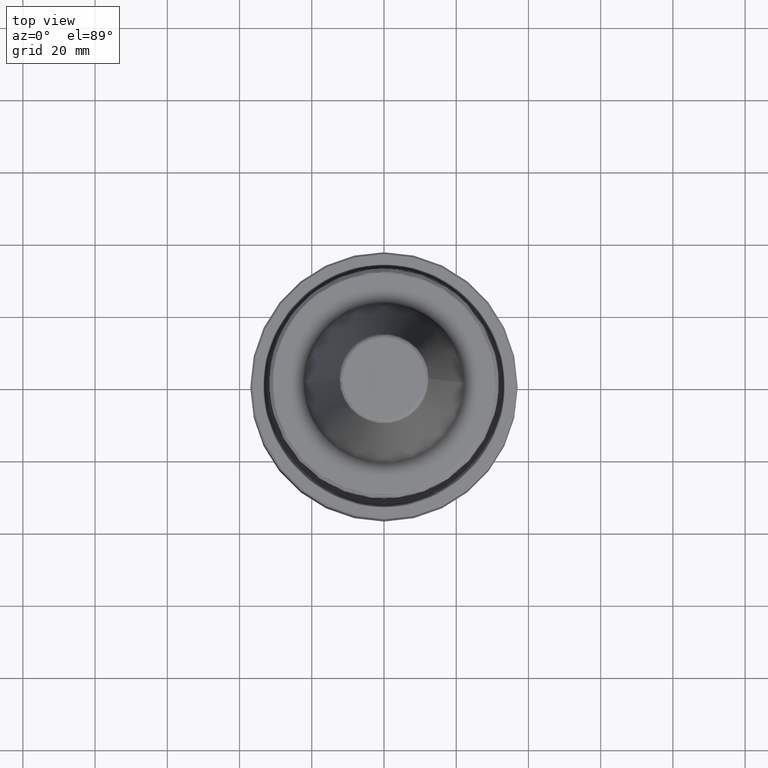
[diagram: clean part render]
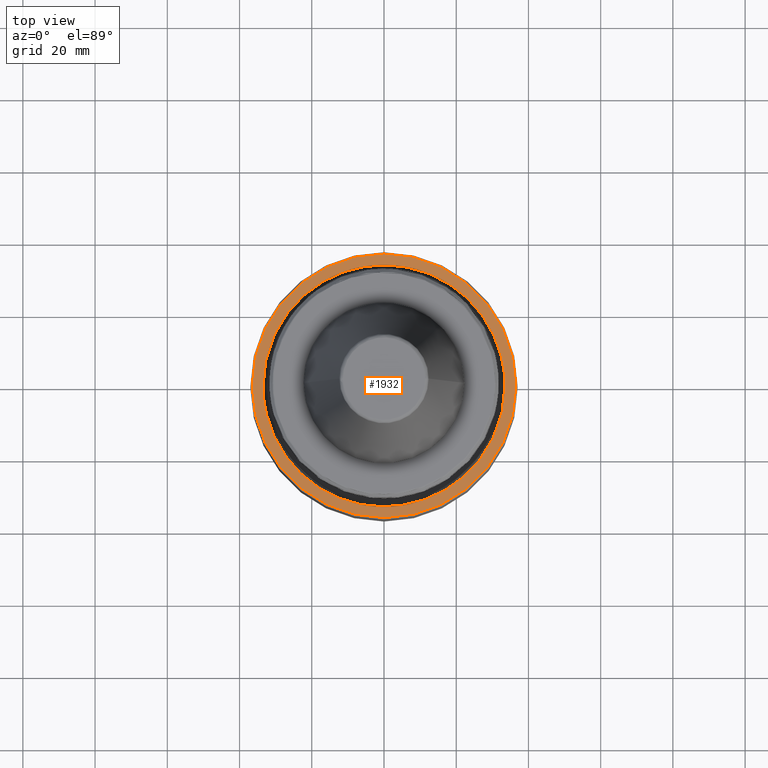
[diagram: same view with one face highlighted and labeled with its STEP entity id]
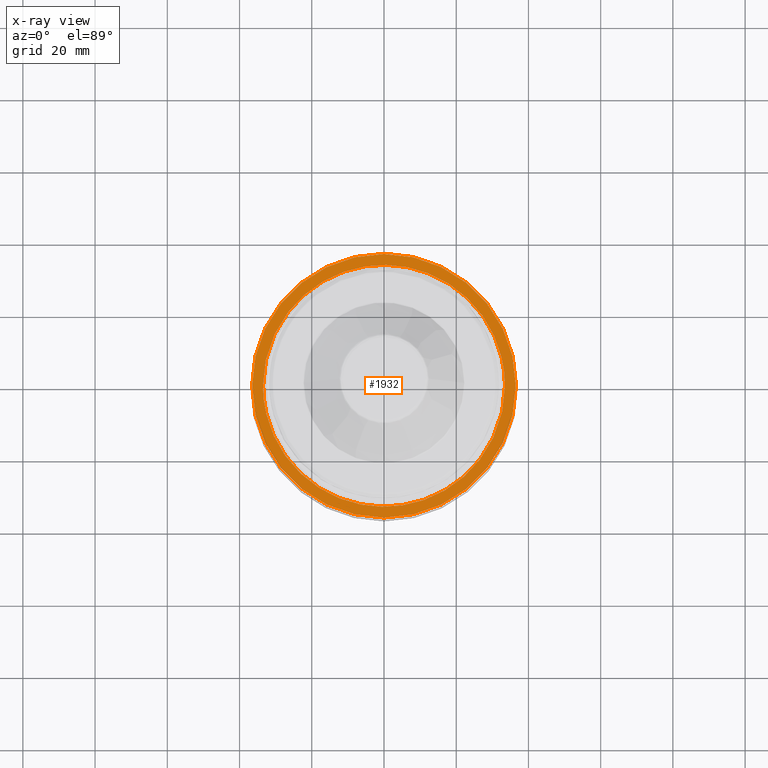
[diagram: x-ray of the same camera — body ghosted, the highlighted face saturated]
A machine part, top view. The second image highlights one B-rep face of the part: STEP entity #1932.
The next image is the same camera in x-ray: the body ghosted, the highlighted face saturated — about 0% of this face is hidden behind the body in this view.
In plain terms, the highlighted planar face has unit normal (0, 0, -1).
Its self-contained STEP definition (entity closure, byte-faithful):
#2 = CARTESIAN_POINT ( 'NONE',  ( 7.952359517104696400, -32.55059523198352900, -47.00000000000000000 ) ) ;
#7 = CARTESIAN_POINT ( 'NONE',  ( 33.50000000000000000, 2.048846822882249600, -46.99999999999999300 ) ) ;
#26 = CARTESIAN_POINT ( 'NONE',  ( -5.654859622911932800, -33.01973466267616400, -46.99999999999999300 ) ) ;
#38 = VERTEX_POINT ( 'NONE', #2089 ) ;
#41 = CARTESIAN_POINT ( 'NONE',  ( -12.29827467637837700, -31.16093272751250600, -47.00000000000000700 ) ) ;
#57 = CARTESIAN_POINT ( 'NONE',  ( -26.89171513926280700, -19.99223735235835200, -46.99999999999998600 ) ) ;
#72 = CARTESIAN_POINT ( 'NONE',  ( -31.12181933227925200, -12.39692386603525500, -46.99999999999996400 ) ) ;
#91 = CARTESIAN_POINT ( 'NONE',  ( -33.50000000000000000, 5.237097627849071600E-015, -46.99999999999999300 ) ) ;
#232 = CARTESIAN_POINT ( 'NONE',  ( -32.74298851503501600, 7.164237154329950600, -46.99999999999999300 ) ) ;
#242 = CARTESIAN_POINT ( 'NONE',  ( -28.30756603510281300, 17.91560796420078800, -46.99999999999999300 ) ) ;
#246 = PLANE ( 'NONE',  #3290 ) ;
#249 = CARTESIAN_POINT ( 'NONE',  ( -18.39075744687928800, 28.00062720074699400, -46.99999999999999300 ) ) ;
#263 = CARTESIAN_POINT ( 'NONE',  ( -7.027222208237296800, 32.75672684826265900, -47.00000000000000000 ) ) ;
#269 = CARTESIAN_POINT ( 'NONE',  ( 33.50000000000000700, -1.024601181675503400, -47.00000000000000000 ) ) ;
#273 = CARTESIAN_POINT ( 'NONE',  ( 5.875370606556057100, 32.98086933073145800, -46.99999999999997900 ) ) ;
#279 = CARTESIAN_POINT ( 'NONE',  ( 32.37057980030813600, -8.745019642501800300, -46.99999999999999300 ) ) ;
#281 = CARTESIAN_POINT ( 'NONE',  ( 13.38391177653064200, 30.73111954411712400, -46.99999999999998600 ) ) ;
#290 = CARTESIAN_POINT ( 'NONE',  ( 28.19320972667573600, -18.09416753936739400, -46.99999999999999300 ) ) ;
#294 = CARTESIAN_POINT ( 'NONE',  ( 27.47565626976097900, 19.17008066245302400, -46.99999999999998600 ) ) ;
#308 = CARTESIAN_POINT ( 'NONE',  ( 17.38383540280921800, -28.65890842704811100, -46.99999999999999300 ) ) ;
#314 = CARTESIAN_POINT ( 'NONE',  ( 31.13540924047665500, 12.36274563196059300, -46.99999999999998600 ) ) ;
#324 = CARTESIAN_POINT ( 'NONE',  ( 6.562282562458228200, -32.85149442293946700, -47.00000000000000000 ) ) ;
#332 = CARTESIAN_POINT ( 'NONE',  ( -5.969836956345813100, -32.96380320948899400, -47.00000000000000700 ) ) ;
#344 = CARTESIAN_POINT ( 'NONE',  ( -14.92351027721805300, -30.02995833053940100, -46.99999999999999300 ) ) ;
#358 = CARTESIAN_POINT ( 'NONE',  ( -27.76003391958806400, -18.75285335469212100, -46.99999999999999300 ) ) ;
#373 = CARTESIAN_POINT ( 'NONE',  ( -31.54787112926396000, -11.32084119792672400, -46.99999999999998600 ) ) ;
#445 = CIRCLE ( 'NONE', #2061, 36.50000000000000000 ) ;
#448 = CIRCLE ( 'NONE', #2083, 36.50000000000000000 ) ;
#519 = CARTESIAN_POINT ( 'NONE',  ( -31.80345869881932700, 10.55088862451681700, -46.99999999999999300 ) ) ;
#523 = VERTEX_POINT ( 'NONE', #1424 ) ;
#531 = B_SPLINE_CURVE_WITH_KNOTS ( 'NONE', 3,
 ( #2439, #269, #861, #2741, #1154, #3011, #1432, #3273, #1692, #3562, #1943, #279, #2206, #578, #2477, #876, #2755, #1167, #3019, #1447, #3284, #1703, #3573, #1952, #290, #2217, #593, #2484, #888, #2766, #1174, #3031, #1459, #3299, #1715, #3583, #1964, #308, #2228, #606, #2499, #902, #2776, #1188, #3044, #1472, #3311, #1729, #2, #1974, #324, #2240, #617, #2512, #917, #2789, #1196, #3060, #1488, #3319, #1738, #26, #1985, #332, #2251, #632, #2525, #931, #2804, #1210, #3067, #1504, #3330, #1749, #41, #1999, #344, #2260, #647, #2538, #947, #2814, #1228, #3079, #1514, #3347, #1760, #57, #2009, #358, #2271, #657, #2554, #963, #2824, #1240, #3092, #1525, #3355, #1774, #72, #2022, #373, #2288, #671, #2562, #982, #2838, #1253, #3104, #1537, #3366, #1784, #91 ),
 .UNSPECIFIED., .F., .F.,
 ( 4, 1, 1, 1, 1, 1, 2, 2, 1, 1, 1, 1, 1, 2, 2, 1, 1, 1, 1, 2, 2, 2, 1, 1, 1, 1, 2, 2, 1, 1, 1, 1, 1, 2, 2, 1, 1, 1, 1, 1, 2, 2, 2, 1, 1, 1, 1, 1, 2, 2, 1, 1, 1, 1, 1, 2, 2, 1, 1, 1, 1, 2, 2, 2, 1, 1, 1, 1, 2, 2, 1, 1, 1, 1, 1, 2, 2, 1, 1, 1, 1, 1, 2, 2, 4 ),
 ( 0.0000000000000000000, 0.03125000000000188000, 0.04687500000000283800, 0.05468750000000329600, 0.05859375000000353900, 0.06054687500000366400, 0.06152343750000369800, 0.06250000000000371900, 0.09375000000000480200, 0.1093750000000053400, 0.1171875000000056500, 0.1210937500000057700, 0.1230468750000058400, 0.1240234375000058700, 0.1250000000000058800, 0.1562500000000065200, 0.1718750000000068300, 0.1796875000000069900, 0.1835937500000070200, 0.1855468750000069900, 0.1875000000000069700, 0.2500000000000090500, 0.2812500000000101000, 0.2968750000000106600, 0.3046875000000108800, 0.3085937500000109900, 0.3105468750000109900, 0.3125000000000109900, 0.3437500000000101000, 0.3593750000000097100, 0.3671875000000094900, 0.3710937500000093800, 0.3730468750000093300, 0.3740234375000092700, 0.3750000000000092100, 0.4062500000000094400, 0.4218750000000094900, 0.4296875000000095500, 0.4335937500000095500, 0.4355468750000095500, 0.4365234375000095500, 0.4375000000000095500, 0.5000000000000109900, 0.5312500000000116600, 0.5468750000000119900, 0.5546875000000123200, 0.5585937500000124300, 0.5605468750000124300, 0.5615234375000124300, 0.5625000000000125500, 0.5937500000000137700, 0.6093750000000143200, 0.6171875000000146500, 0.6210937500000147700, 0.6230468750000147700, 0.6240234375000147700, 0.6250000000000148800, 0.6562500000000146500, 0.6718750000000145400, 0.6796875000000145400, 0.6835937500000146500, 0.6855468750000145400, 0.6875000000000144300, 0.7500000000000113200, 0.7812500000000097700, 0.7968750000000089900, 0.8046875000000085500, 0.8085937500000083300, 0.8105468750000082200, 0.8125000000000081000, 0.8437500000000069900, 0.8593750000000065500, 0.8671875000000062200, 0.8710937500000061100, 0.8730468750000061100, 0.8740234375000061100, 0.8750000000000060000, 0.9062500000000046600, 0.9218750000000041100, 0.9296875000000037700, 0.9335937500000035500, 0.9355468750000034400, 0.9365234375000034400, 0.9375000000000033300, 1.000000000000000000 ),
 .UNSPECIFIED. ) ;
#534 = CARTESIAN_POINT ( 'NONE',  ( -28.11657646687929100, 18.21300147485857600, -46.99999999999998600 ) ) ;
#542 = DIRECTION ( 'NONE',  ( -1.000000000000000000, 0.0000000000000000000, -0.0000000000000000000 ) ) ;
#549 = CARTESIAN_POINT ( 'NONE',  ( -15.92302265503588800, 29.51214733547481500, -46.99999999999999300 ) ) ;
#559 = CARTESIAN_POINT ( 'NONE',  ( -6.329219991746519700, 32.89680365190113800, -47.00000000000000000 ) ) ;
#568 = CARTESIAN_POINT ( 'NONE',  ( 6.032805998990901300, 32.95233478412353600, -46.99999999999998600 ) ) ;
#578 = CARTESIAN_POINT ( 'NONE',  ( 31.48673708117768300, -11.44422880192624300, -46.99999999999999300 ) ) ;
#580 = CARTESIAN_POINT ( 'NONE',  ( 16.65056601284289100, 29.07897471231232700, -46.99999999999998600 ) ) ;
#587 = FACE_OUTER_BOUND ( 'NONE', #3438, .T. ) ;
#593 = CARTESIAN_POINT ( 'NONE',  ( 28.07890443927926700, -18.27102699116993600, -47.00000000000000000 ) ) ;
#596 = CARTESIAN_POINT ( 'NONE',  ( 27.88028300193647600, 18.57272401648378900, -46.99999999999998600 ) ) ;
#606 = CARTESIAN_POINT ( 'NONE',  ( 14.15000856356413500, -30.37441896502447100, -47.00000000000000000 ) ) ;
#608 = CARTESIAN_POINT ( 'NONE',  ( 32.07194613156371300, 9.783666204288303800, -47.00000000000000000 ) ) ;
#617 = CARTESIAN_POINT ( 'NONE',  ( 6.229209015472696000, -32.91577734466650900, -46.99999999999999300 ) ) ;
#632 = CARTESIAN_POINT ( 'NONE',  ( -6.062372415227351000, -32.94690925842159900, -46.99999999999999300 ) ) ;
#647 = CARTESIAN_POINT ( 'NONE',  ( -17.49680825189287600, -28.57024235260046700, -47.00000000000000000 ) ) ;
#657 = CARTESIAN_POINT ( 'NONE',  ( -27.96008748942887200, -18.45234498325657300, -47.00000000000000700 ) ) ;
#671 = CARTESIAN_POINT ( 'NONE',  ( -32.55059523196474200, -7.952359517154585300, -46.99999999999998600 ) ) ;
#819 = CARTESIAN_POINT ( 'NONE',  ( -31.32008600562474900, 11.88850031226259000, -46.99999999999997200 ) ) ;
#834 = CARTESIAN_POINT ( 'NONE',  ( -26.77359559528255400, 20.26751864982982100, -47.00000000000000700 ) ) ;
#837 = CARTESIAN_POINT ( 'NONE',  ( -13.24631837962604700, 30.77226133895238300, -46.99999999999999300 ) ) ;
#850 = CARTESIAN_POINT ( 'NONE',  ( -6.162506805206184900, 32.92832768468041800, -46.99999999999999300 ) ) ;
#861 = CARTESIAN_POINT ( 'NONE',  ( 33.43009123024441500, -2.555022349907987600, -46.99999999999998600 ) ) ;
#866 = CARTESIAN_POINT ( 'NONE',  ( 7.164237154351822000, 32.74298851503549900, -46.99999999999999300 ) ) ;
#876 = CARTESIAN_POINT ( 'NONE',  ( 31.23468790116967500, -12.11003642282105700, -47.00000000000000000 ) ) ;
#880 = CARTESIAN_POINT ( 'NONE',  ( 17.91560796420808500, 28.30756603509600600, -46.99999999999999300 ) ) ;
#888 = CARTESIAN_POINT ( 'NONE',  ( 25.32367641086600300, -22.05253050891109400, -47.00000000000000700 ) ) ;
#893 = CARTESIAN_POINT ( 'NONE',  ( 28.00062720074476300, 18.39075744688505100, -46.99999999999998600 ) ) ;
#902 = CARTESIAN_POINT ( 'NONE',  ( 12.79017750316756300, -30.96285916567040500, -46.99999999999999300 ) ) ;
#906 = CARTESIAN_POINT ( 'NONE',  ( 32.75672684826125200, 7.027222208242318600, -47.00000000000000000 ) ) ;
#917 = CARTESIAN_POINT ( 'NONE',  ( 6.127249286371606400, -32.93490360438895000, -47.00000000000000000 ) ) ;
#931 = CARTESIAN_POINT ( 'NONE',  ( -8.745019642573865300, -32.37057980029365500, -46.99999999999998600 ) ) ;
#947 = CARTESIAN_POINT ( 'NONE',  ( -18.09416753937966900, -28.19320972666887200, -47.00000000000000000 ) ) ;
#963 = CARTESIAN_POINT ( 'NONE',  ( -28.65890842705929100, -17.38383540277913800, -46.99999999999999300 ) ) ;
#982 = CARTESIAN_POINT ( 'NONE',  ( -32.85149442293359100, -6.562282562473829900, -47.00000000000001400 ) ) ;
#1092 = CARTESIAN_POINT ( 'NONE',  ( -33.50000000000000000, 5.237097627849071600E-015, -46.99999999999999300 ) ) ;
#1108 = CARTESIAN_POINT ( 'NONE',  ( -33.22619065179058100, 4.329172655363361600, -46.99999999999997900 ) ) ;
#1117 = CARTESIAN_POINT ( 'NONE',  ( -31.19764459211279100, 12.20485197493832000, -46.99999999999998600 ) ) ;
#1130 = CARTESIAN_POINT ( 'NONE',  ( -22.87027754919089500, 24.50585050017231800, -47.00000000000001400 ) ) ;
#1136 = CARTESIAN_POINT ( 'NONE',  ( -12.56103311878137800, 31.05607723898729200, -46.99999999999998600 ) ) ;
#1149 = CARTESIAN_POINT ( 'NONE',  ( -4.080592299687324100, 33.31360904621169500, -46.99999999999999300 ) ) ;
#1154 = CARTESIAN_POINT ( 'NONE',  ( 33.09365527579561200, -5.213412543704973400, -46.99999999999999300 ) ) ;
#1156 = CARTESIAN_POINT ( 'NONE',  ( 10.55088862454553800, 31.80345869881998100, -47.00000000000000700 ) ) ;
#1167 = CARTESIAN_POINT ( 'NONE',  ( 31.17285035909102900, -12.26803378850779900, -46.99999999999997900 ) ) ;
#1169 = CARTESIAN_POINT ( 'NONE',  ( 18.21300147486076400, 28.11657646687724800, -47.00000000000000000 ) ) ;
#1174 = CARTESIAN_POINT ( 'NONE',  ( 21.58735902985387200, -25.66308955499226100, -46.99999999999998600 ) ) ;
#1179 = CARTESIAN_POINT ( 'NONE',  ( 29.51214733553735300, 15.92302265487460400, -47.00000000000000000 ) ) ;
#1188 = CARTESIAN_POINT ( 'NONE',  ( 12.46259825131340500, -31.09558194753319800, -47.00000000000000000 ) ) ;
#1190 = CARTESIAN_POINT ( 'NONE',  ( 32.89680365190074000, 6.329219991747904400, -46.99999999999999300 ) ) ;
#1196 = CARTESIAN_POINT ( 'NONE',  ( 2.049377667884041600, -33.50003244339169600, -46.99999999999998600 ) ) ;
#1210 = CARTESIAN_POINT ( 'NONE',  ( -11.44422880195779300, -31.48673708117134900, -46.99999999999999300 ) ) ;
#1228 = CARTESIAN_POINT ( 'NONE',  ( -18.27102699116770200, -28.07890443928102900, -47.00000000000000000 ) ) ;
#1240 = CARTESIAN_POINT ( 'NONE',  ( -30.37441896503909800, -14.15000856352465100, -46.99999999999998600 ) ) ;
#1253 = CARTESIAN_POINT ( 'NONE',  ( -32.91577734466474000, -6.229209015477356300, -47.00000000000000000 ) ) ;
#1364 = DIRECTION ( 'NONE',  ( 0.0000000000000000000, 0.0000000000000000000, -1.000000000000000000 ) ) ;
#1378 = CARTESIAN_POINT ( 'NONE',  ( -33.01974131610610600, 5.654823671789746000, -46.99999999999999300 ) ) ;
#1386 = CARTESIAN_POINT ( 'NONE',  ( 0.0000000000000000000, 0.0000000000000000000, -46.99999999999999300 ) ) ;
#1388 = CARTESIAN_POINT ( 'NONE',  ( -31.16093272751197700, 12.29827467637930400, -47.00000000000000000 ) ) ;
#1398 = CARTESIAN_POINT ( 'NONE',  ( 0.0000000000000000000, 33.50000000000000000, -46.99999999999999300 ) ) ;
#1405 = CARTESIAN_POINT ( 'NONE',  ( -19.99223735241936600, 26.89171513921645500, -46.99999999999998600 ) ) ;
#1412 = CARTESIAN_POINT ( 'NONE',  ( -12.39692386603469200, 31.12181933227991900, -46.99999999999999300 ) ) ;
#1424 = CARTESIAN_POINT ( 'NONE',  ( -33.50000000000000000, 5.237097627849071600E-015, -46.99999999999999300 ) ) ;
#1425 = CARTESIAN_POINT ( 'NONE',  ( 1.024688833958465400, 33.49998377829746200, -47.00000000000000000 ) ) ;
#1432 = CARTESIAN_POINT ( 'NONE',  ( 32.98087276833835100, -5.875352031804684600, -47.00000000000000000 ) ) ;
#1437 = CARTESIAN_POINT ( 'NONE',  ( 11.88850031227155500, 31.32008600562495500, -46.99999999999999300 ) ) ;
#1447 = CARTESIAN_POINT ( 'NONE',  ( 30.73111954414503100, -13.38391177649185000, -46.99999999999999300 ) ) ;
#1453 = CARTESIAN_POINT ( 'NONE',  ( 20.26751864973599400, 26.77359559535403100, -46.99999999999998600 ) ) ;
#1459 = CARTESIAN_POINT ( 'NONE',  ( 19.17008066248375900, -27.47565626971883300, -46.99999999999999300 ) ) ;
#1461 = EDGE_CURVE ( 'NONE', #1634, #523, #531, .T. ) ;
#1462 = CARTESIAN_POINT ( 'NONE',  ( 30.77226133897973200, 13.24631837955548400, -46.99999999999999300 ) ) ;
#1472 = CARTESIAN_POINT ( 'NONE',  ( 12.36274563196130700, -31.13540924047620000, -47.00000000000000000 ) ) ;
#1478 = CARTESIAN_POINT ( 'NONE',  ( 32.92832768468031200, 6.162506805206590800, -46.99999999999998600 ) ) ;
#1488 = CARTESIAN_POINT ( 'NONE',  ( -2.555175741374421600, -33.43006284227667600, -46.99999999999998600 ) ) ;
#1504 = CARTESIAN_POINT ( 'NONE',  ( -12.11003642282978500, -31.23468790116789900, -46.99999999999998600 ) ) ;
#1514 = CARTESIAN_POINT ( 'NONE',  ( -22.05253050883277800, -25.32367641095921900, -46.99999999999998600 ) ) ;
#1525 = CARTESIAN_POINT ( 'NONE',  ( -30.96285916567498500, -12.79017750315521900, -47.00000000000000700 ) ) ;
#1537 = CARTESIAN_POINT ( 'NONE',  ( -32.93490411114227400, -6.127246547697772000, -46.99999999999999300 ) ) ;
#1634 = VERTEX_POINT ( 'NONE', #2357 ) ;
#1648 = CARTESIAN_POINT ( 'NONE',  ( -32.96380519759723200, 5.969826213808112800, -47.00000000000000000 ) ) ;
#1656 = DIRECTION ( 'NONE',  ( -1.000000000000000000, 0.0000000000000000000, 0.0000000000000000000 ) ) ;
#1657 = CARTESIAN_POINT ( 'NONE',  ( -30.02995833056959900, 14.92351027716539300, -46.99999999999999300 ) ) ;
#1664 = CARTESIAN_POINT ( 'NONE',  ( -18.75285335471118800, 27.76003391957358000, -46.99999999999999300 ) ) ;
#1671 = CARTESIAN_POINT ( 'NONE',  ( -11.32084119790480900, 31.54787112926575400, -47.00000000000000000 ) ) ;
#1685 = CARTESIAN_POINT ( 'NONE',  ( 4.329287698975927700, 33.22616936080601100, -47.00000000000000000 ) ) ;
#1692 = CARTESIAN_POINT ( 'NONE',  ( 32.95233579005919500, -6.032800563522187100, -47.00000000000000700 ) ) ;
#1695 = CARTESIAN_POINT ( 'NONE',  ( 12.20485197494100200, 31.19764459211285200, -46.99999999999999300 ) ) ;
#1703 = CARTESIAN_POINT ( 'NONE',  ( 29.07897471234896600, -16.65056601279196300, -46.99999999999997900 ) ) ;
#1707 = CARTESIAN_POINT ( 'NONE',  ( 24.50585050022353100, 22.87027754915085300, -47.00000000000000000 ) ) ;
#1715 = CARTESIAN_POINT ( 'NONE',  ( 18.57272401649343500, -27.88028300192325300, -47.00000000000000000 ) ) ;
#1717 = CARTESIAN_POINT ( 'NONE',  ( 31.05607723899485600, 12.56103311876184800, -46.99999999999999300 ) ) ;
#1724 = ORIENTED_EDGE ( 'NONE', *, *, #3296, .F. ) ;
#1729 = CARTESIAN_POINT ( 'NONE',  ( 9.783666204248737200, -32.07194613158890200, -46.99999999999998600 ) ) ;
#1732 = CARTESIAN_POINT ( 'NONE',  ( 33.31357661398509200, 4.080767574817834000, -46.99999999999998600 ) ) ;
#1738 = CARTESIAN_POINT ( 'NONE',  ( -5.213479652471542100, -33.09364285605972400, -47.00000000000000000 ) ) ;
#1749 = CARTESIAN_POINT ( 'NONE',  ( -12.26803378851035800, -31.17285035909051800, -47.00000000000000700 ) ) ;
#1760 = CARTESIAN_POINT ( 'NONE',  ( -25.66308955506080000, -21.58735902977230500, -47.00000000000000000 ) ) ;
#1774 = CARTESIAN_POINT ( 'NONE',  ( -31.09558194753456600, -12.46259825130970500, -47.00000000000000000 ) ) ;
#1784 = CARTESIAN_POINT ( 'NONE',  ( -33.50000000000000000, -2.048846822852436100, -46.99999999999999300 ) ) ;
#1854 = CARTESIAN_POINT ( 'NONE',  ( 36.50000000000000000, 4.500576986866522200E-015, -46.99999999999999300 ) ) ;
#1891 = CARTESIAN_POINT ( 'NONE',  ( -32.94690925842149900, 6.062372415228013600, -46.99999999999998600 ) ) ;
#1901 = CARTESIAN_POINT ( 'NONE',  ( -28.57024235261368300, 17.49680825186982600, -46.99999999999998600 ) ) ;
#1908 = ORIENTED_EDGE ( 'NONE', *, *, #2940, .T. ) ;
#1910 = CARTESIAN_POINT ( 'NONE',  ( -18.45234498326229700, 27.96008748942452400, -46.99999999999998600 ) ) ;
#1925 = CARTESIAN_POINT ( 'NONE',  ( -7.952359517125786100, 32.55059523196711500, -47.00000000000000700 ) ) ;
#1931 = CARTESIAN_POINT ( 'NONE',  ( 5.654859622918661600, 33.01973466267341500, -46.99999999999999300 ) ) ;
#1932 = ADVANCED_FACE ( 'NONE', ( #587, #2041 ), #246, .F. ) ;
#1943 = CARTESIAN_POINT ( 'NONE',  ( 32.74298851504002500, -7.164237154309971900, -46.99999999999998600 ) ) ;
#1944 = CARTESIAN_POINT ( 'NONE',  ( 12.29827467637874600, 31.16093272751249200, -46.99999999999999300 ) ) ;
#1952 = CARTESIAN_POINT ( 'NONE',  ( 28.30756603510746000, -17.91560796419216200, -46.99999999999998600 ) ) ;
#1956 = CARTESIAN_POINT ( 'NONE',  ( 26.89171513928367200, 19.99223735236681800, -46.99999999999999300 ) ) ;
#1964 = CARTESIAN_POINT ( 'NONE',  ( 18.39075744687683300, -28.00062720074836500, -46.99999999999999300 ) ) ;
#1967 = CARTESIAN_POINT ( 'NONE',  ( 31.12181933228215100, 12.39692386602897800, -47.00000000000000700 ) ) ;
#1974 = CARTESIAN_POINT ( 'NONE',  ( 7.027222208224997300, -32.75672684827224400, -46.99999999999998600 ) ) ;
#1978 = CARTESIAN_POINT ( 'NONE',  ( 33.50000000000000000, 0.0000000000000000000, -46.99999999999999300 ) ) ;
#1985 = CARTESIAN_POINT ( 'NONE',  ( -5.875370606552579000, -32.98086933073287200, -47.00000000000000000 ) ) ;
#1999 = CARTESIAN_POINT ( 'NONE',  ( -13.38391177654295900, -30.73111954411643500, -46.99999999999999300 ) ) ;
#2009 = CARTESIAN_POINT ( 'NONE',  ( -27.47565626974880700, -19.17008066244806100, -46.99999999999998600 ) ) ;
#2018 = B_SPLINE_CURVE_WITH_KNOTS ( 'NONE', 3,
 ( #1092, #2681, #2688, #1108, #2960, #1378, #3220, #1648, #3499, #1891, #232, #2152, #519, #2422, #819, #2701, #1117, #2973, #1388, #3229, #1657, #3515, #1901, #242, #2167, #534, #2431, #834, #2713, #1130, #2982, #1405, #3241, #1664, #3531, #1910, #249, #2176, #549, #2442, #837, #2725, #1136, #2991, #1412, #3259, #1671, #3540, #1925, #263, #2184, #559, #2454, #850, #2730, #1149, #3000, #1425, #3267, #1685, #3550, #1931, #273, #2196, #568, #2468, #866, #2743, #1156, #3015, #1437, #3276, #1695, #3565, #1944, #281, #2210, #580, #2479, #880, #2759, #1169, #3020, #1453, #3287, #1707, #3575, #1956, #294, #2218, #596, #2487, #893, #2767, #1179, #3034, #1462, #3302, #1717, #3585, #1967, #314, #2232, #608, #2502, #906, #2779, #1190, #3049, #1478, #3313, #1732, #7, #1978 ),
 .UNSPECIFIED., .F., .F.,
 ( 4, 1, 1, 1, 1, 1, 2, 2, 1, 1, 1, 1, 1, 2, 2, 1, 1, 1, 1, 2, 2, 2, 1, 1, 1, 1, 2, 2, 1, 1, 1, 1, 1, 2, 2, 1, 1, 1, 1, 1, 2, 2, 2, 1, 1, 1, 1, 1, 2, 2, 1, 1, 1, 1, 1, 2, 2, 1, 1, 1, 1, 2, 2, 2, 1, 1, 1, 1, 2, 2, 1, 1, 1, 1, 1, 2, 2, 1, 1, 1, 1, 1, 2, 2, 4 ),
 ( 0.0000000000000000000, 0.03125000000000277600, 0.04687500000000417700, 0.05468750000000485000, 0.05859375000000518300, 0.06054687500000533600, 0.06152343750000540500, 0.06250000000000548200, 0.09375000000000785500, 0.1093750000000090500, 0.1171875000000096600, 0.1210937500000100100, 0.1230468750000101900, 0.1240234375000102700, 0.1250000000000103300, 0.1562500000000117700, 0.1718750000000125700, 0.1796875000000129300, 0.1835937500000131000, 0.1855468750000132100, 0.1875000000000132900, 0.2500000000000153800, 0.2812500000000164300, 0.2968750000000169900, 0.3046875000000173200, 0.3085937500000174900, 0.3105468750000174900, 0.3125000000000174900, 0.3437500000000171000, 0.3593750000000168800, 0.3671875000000167600, 0.3710937500000167600, 0.3730468750000167600, 0.3740234375000167100, 0.3750000000000167100, 0.4062500000000159300, 0.4218750000000155400, 0.4296875000000152700, 0.4335937500000152100, 0.4355468750000151500, 0.4365234375000151000, 0.4375000000000151000, 0.5000000000000114400, 0.5312500000000096600, 0.5468750000000086600, 0.5546875000000083300, 0.5585937500000081000, 0.5605468750000078800, 0.5615234375000078800, 0.5625000000000078800, 0.5937500000000052200, 0.6093750000000038900, 0.6171875000000033300, 0.6210937500000030000, 0.6230468750000027800, 0.6240234375000027800, 0.6250000000000027800, 0.6562500000000024400, 0.6718750000000022200, 0.6796875000000022200, 0.6835937500000021100, 0.6855468750000020000, 0.6875000000000020000, 0.7500000000000020000, 0.7812500000000020000, 0.7968750000000018900, 0.8046875000000020000, 0.8085937500000020000, 0.8105468750000018900, 0.8125000000000018900, 0.8437500000000014400, 0.8593750000000012200, 0.8671875000000012200, 0.8710937500000012200, 0.8730468750000011100, 0.8740234375000011100, 0.8750000000000011100, 0.9062500000000007800, 0.9218750000000005600, 0.9296875000000005600, 0.9335937500000004400, 0.9355468750000003300, 0.9365234375000003300, 0.9375000000000003300, 1.000000000000000000 ),
 .UNSPECIFIED. ) ;
#2022 = CARTESIAN_POINT ( 'NONE',  ( -31.13540924047665100, -12.36274563196011100, -46.99999999999999300 ) ) ;
#2041 = FACE_BOUND ( 'NONE', #3457, .T. ) ;
#2061 = AXIS2_PLACEMENT_3D ( 'NONE', #1386, #3227, #1656 ) ;
#2083 = AXIS2_PLACEMENT_3D ( 'NONE', #2942, #1364, #3200 ) ;
#2089 = CARTESIAN_POINT ( 'NONE',  ( -36.50000000000000000, 0.0000000000000000000, -46.99999999999999300 ) ) ;
#2152 = CARTESIAN_POINT ( 'NONE',  ( -32.37057980029936700, 8.745019642536757200, -46.99999999999997900 ) ) ;
#2167 = CARTESIAN_POINT ( 'NONE',  ( -28.19320972667301100, 18.09416753937243500, -46.99999999999999300 ) ) ;
#2173 = DIRECTION ( 'NONE',  ( 0.0000000000000000000, 0.0000000000000000000, -1.000000000000000000 ) ) ;
#2176 = CARTESIAN_POINT ( 'NONE',  ( -17.38383540277001100, 28.65890842707006300, -47.00000000000000000 ) ) ;
#2184 = CARTESIAN_POINT ( 'NONE',  ( -6.562282562464819300, 32.85149442293434400, -46.99999999999998600 ) ) ;
#2196 = CARTESIAN_POINT ( 'NONE',  ( 5.969836956347815100, 32.96380320948817700, -46.99999999999999300 ) ) ;
#2206 = CARTESIAN_POINT ( 'NONE',  ( 31.80345869882590600, -10.55088862449060400, -47.00000000000000000 ) ) ;
#2210 = CARTESIAN_POINT ( 'NONE',  ( 14.92351027719650400, 30.02995833054057000, -46.99999999999999300 ) ) ;
#2217 = CARTESIAN_POINT ( 'NONE',  ( 28.11657646688070500, -18.21300147485598600, -47.00000000000000700 ) ) ;
#2218 = CARTESIAN_POINT ( 'NONE',  ( 27.76003391959458400, 18.75285335469476800, -46.99999999999999300 ) ) ;
#2228 = CARTESIAN_POINT ( 'NONE',  ( 15.92302265510450000, -29.51214733543642100, -46.99999999999999300 ) ) ;
#2232 = CARTESIAN_POINT ( 'NONE',  ( 31.54787112926389600, 11.32084119791133900, -46.99999999999998600 ) ) ;
#2240 = CARTESIAN_POINT ( 'NONE',  ( 6.329219991743116200, -32.89680365190380200, -46.99999999999999300 ) ) ;
#2251 = CARTESIAN_POINT ( 'NONE',  ( -6.032805998989892300, -32.95233478412396300, -47.00000000000000700 ) ) ;
#2260 = CARTESIAN_POINT ( 'NONE',  ( -16.65056601285904500, -29.07897471231145700, -47.00000000000000000 ) ) ;
#2271 = CARTESIAN_POINT ( 'NONE',  ( -27.88028300193266400, -18.57272401648224400, -46.99999999999999300 ) ) ;
#2288 = CARTESIAN_POINT ( 'NONE',  ( -32.07194613156384800, -9.783666204315236900, -46.99999999999998600 ) ) ;
#2351 = EDGE_CURVE ( 'NONE', #38, #2782, #448, .T. ) ;
#2357 = CARTESIAN_POINT ( 'NONE',  ( 33.50000000000000000, 0.0000000000000000000, -46.99999999999999300 ) ) ;
#2422 = CARTESIAN_POINT ( 'NONE',  ( -31.48673708117385300, 11.44422880194155200, -46.99999999999999300 ) ) ;
#2431 = CARTESIAN_POINT ( 'NONE',  ( -28.07890443927927000, 18.27102699117016400, -47.00000000000000000 ) ) ;
#2439 = CARTESIAN_POINT ( 'NONE',  ( 33.50000000000000000, 0.0000000000000000000, -46.99999999999999300 ) ) ;
#2442 = CARTESIAN_POINT ( 'NONE',  ( -14.15000856351267800, 30.37441896505326600, -47.00000000000000000 ) ) ;
#2454 = CARTESIAN_POINT ( 'NONE',  ( -6.229209015474663300, 32.91577734466497400, -47.00000000000000000 ) ) ;
#2468 = CARTESIAN_POINT ( 'NONE',  ( 6.062372415227320800, 32.94690925842149200, -46.99999999999999300 ) ) ;
#2477 = CARTESIAN_POINT ( 'NONE',  ( 31.32008600562679500, -11.88850031225440800, -47.00000000000000000 ) ) ;
#2479 = CARTESIAN_POINT ( 'NONE',  ( 17.49680825188344700, 28.57024235260099200, -46.99999999999999300 ) ) ;
#2484 = CARTESIAN_POINT ( 'NONE',  ( 26.77359559528270000, -20.26751864983714000, -47.00000000000000000 ) ) ;
#2487 = CARTESIAN_POINT ( 'NONE',  ( 27.96008748943083300, 18.45234498325736500, -47.00000000000000000 ) ) ;
#2499 = CARTESIAN_POINT ( 'NONE',  ( 13.24631837965606000, -30.77226133893556400, -46.99999999999997200 ) ) ;
#2502 = CARTESIAN_POINT ( 'NONE',  ( 32.55059523196463500, 7.952359517134382800, -46.99999999999998600 ) ) ;
#2512 = CARTESIAN_POINT ( 'NONE',  ( 6.162506805205192800, -32.92832768468119300, -47.00000000000000700 ) ) ;
#2525 = CARTESIAN_POINT ( 'NONE',  ( -7.164237154351154900, -32.74298851503176200, -47.00000000000000000 ) ) ;
#2538 = CARTESIAN_POINT ( 'NONE',  ( -17.91560796421312300, -28.30756603509572900, -46.99999999999999300 ) ) ;
#2554 = CARTESIAN_POINT ( 'NONE',  ( -28.00062720074767200, -18.39075744687872000, -46.99999999999999300 ) ) ;
#2562 = CARTESIAN_POINT ( 'NONE',  ( -32.75672684826130200, -7.027222208254097600, -46.99999999999998600 ) ) ;
#2681 = CARTESIAN_POINT ( 'NONE',  ( -33.50000000000001400, 1.024601181682230500, -47.00000000000000700 ) ) ;
#2688 = CARTESIAN_POINT ( 'NONE',  ( -33.43009123024442200, 2.555022349919758200, -47.00000000000000000 ) ) ;
#2701 = CARTESIAN_POINT ( 'NONE',  ( -31.23468790116860900, 12.11003642282526900, -46.99999999999998600 ) ) ;
#2713 = CARTESIAN_POINT ( 'NONE',  ( -25.32367641086624800, 22.05253050890339800, -47.00000000000000000 ) ) ;
#2720 = ORIENTED_EDGE ( 'NONE', *, *, #1461, .T. ) ;
#2725 = CARTESIAN_POINT ( 'NONE',  ( -12.79017750315147400, 30.96285916567940800, -47.00000000000000700 ) ) ;
#2730 = CARTESIAN_POINT ( 'NONE',  ( -6.127249286371213800, 32.93490360438873700, -46.99999999999998600 ) ) ;
#2741 = CARTESIAN_POINT ( 'NONE',  ( 33.22619065179057400, -4.329172655354537500, -46.99999999999997200 ) ) ;
#2743 = CARTESIAN_POINT ( 'NONE',  ( 8.745019642575035900, 32.37057980030022700, -46.99999999999999300 ) ) ;
#2755 = CARTESIAN_POINT ( 'NONE',  ( 31.19764459211339900, -12.20485197493588300, -46.99999999999999300 ) ) ;
#2759 = CARTESIAN_POINT ( 'NONE',  ( 18.09416753937671600, 28.19320972666901800, -46.99999999999999300 ) ) ;
#2766 = CARTESIAN_POINT ( 'NONE',  ( 22.87027754919101600, -24.50585050016848100, -47.00000000000000000 ) ) ;
#2767 = CARTESIAN_POINT ( 'NONE',  ( 28.65890842710580300, 17.38383540267785000, -47.00000000000000000 ) ) ;
#2776 = CARTESIAN_POINT ( 'NONE',  ( 12.56103311878969100, -31.05607723898264200, -46.99999999999998600 ) ) ;
#2779 = CARTESIAN_POINT ( 'NONE',  ( 32.85149442293356300, 6.562282562467507900, -46.99999999999999300 ) ) ;
#2782 = VERTEX_POINT ( 'NONE', #1854 ) ;
#2789 = CARTESIAN_POINT ( 'NONE',  ( 4.080592299662353800, -33.31360904619829500, -47.00000000000002100 ) ) ;
#2804 = CARTESIAN_POINT ( 'NONE',  ( -10.55088862454466200, -31.80345869881502800, -46.99999999999998600 ) ) ;
#2814 = CARTESIAN_POINT ( 'NONE',  ( -18.21300147486228800, -28.11657646687718800, -47.00000000000000700 ) ) ;
#2824 = CARTESIAN_POINT ( 'NONE',  ( -29.51214733545594300, -15.92302265505184500, -46.99999999999999300 ) ) ;
#2838 = CARTESIAN_POINT ( 'NONE',  ( -32.89680365190074700, -6.329219991751180000, -46.99999999999999300 ) ) ;
#2940 = EDGE_CURVE ( 'NONE', #523, #1634, #2018, .T. ) ;
#2942 = CARTESIAN_POINT ( 'NONE',  ( 0.0000000000000000000, 0.0000000000000000000, -46.99999999999999300 ) ) ;
#2960 = CARTESIAN_POINT ( 'NONE',  ( -33.09365527579562600, 5.213412543710126600, -47.00000000000000000 ) ) ;
#2973 = CARTESIAN_POINT ( 'NONE',  ( -31.17285035909072700, 12.26803378850902400, -46.99999999999999300 ) ) ;
#2982 = CARTESIAN_POINT ( 'NONE',  ( -21.58735902985366600, 25.66308955499897900, -46.99999999999998600 ) ) ;
#2991 = CARTESIAN_POINT ( 'NONE',  ( -12.46259825130859300, 31.09558194753589800, -47.00000000000000000 ) ) ;
#3000 = CARTESIAN_POINT ( 'NONE',  ( -2.049377667916938400, 33.50003244340511800, -47.00000000000000700 ) ) ;
#3011 = CARTESIAN_POINT ( 'NONE',  ( 33.01974131610609900, -5.654823671786977500, -46.99999999999999300 ) ) ;
#3015 = CARTESIAN_POINT ( 'NONE',  ( 11.44422880195829100, 31.48673708117422600, -46.99999999999998600 ) ) ;
#3019 = CARTESIAN_POINT ( 'NONE',  ( 31.16093272751161400, -12.29827467637996800, -46.99999999999999300 ) ) ;
#3020 = CARTESIAN_POINT ( 'NONE',  ( 18.27102699117310200, 28.07890443927703200, -47.00000000000000000 ) ) ;
#3031 = CARTESIAN_POINT ( 'NONE',  ( 19.99223735241952900, -26.89171513921141400, -47.00000000000000700 ) ) ;
#3034 = CARTESIAN_POINT ( 'NONE',  ( 30.37441896510015800, 14.15000856339171000, -46.99999999999999300 ) ) ;
#3044 = CARTESIAN_POINT ( 'NONE',  ( 12.39692386603713300, -31.12181933227856900, -47.00000000000000700 ) ) ;
#3049 = CARTESIAN_POINT ( 'NONE',  ( 32.91577734466474000, 6.229209015475464500, -46.99999999999999300 ) ) ;
#3060 = CARTESIAN_POINT ( 'NONE',  ( -1.024688833942039500, -33.49998377830415600, -47.00000000000000000 ) ) ;
#3067 = CARTESIAN_POINT ( 'NONE',  ( -11.88850031227130100, -31.32008600562342300, -47.00000000000001400 ) ) ;
#3076 = ORIENTED_EDGE ( 'NONE', *, *, #2351, .F. ) ;
#3079 = CARTESIAN_POINT ( 'NONE',  ( -20.26751864990861000, -26.77359559522613000, -47.00000000000000000 ) ) ;
#3092 = CARTESIAN_POINT ( 'NONE',  ( -30.77226133894413000, -13.24631837963304900, -47.00000000000000000 ) ) ;
#3104 = CARTESIAN_POINT ( 'NONE',  ( -32.92832768468031900, -6.162506805207549100, -46.99999999999996400 ) ) ;
#3200 = DIRECTION ( 'NONE',  ( -1.000000000000000000, 0.0000000000000000000, 0.0000000000000000000 ) ) ;
#3220 = CARTESIAN_POINT ( 'NONE',  ( -32.98087276833835800, 5.875352031806108300, -47.00000000000000000 ) ) ;
#3227 = DIRECTION ( 'NONE',  ( 0.0000000000000000000, 0.0000000000000000000, -1.000000000000000000 ) ) ;
#3229 = CARTESIAN_POINT ( 'NONE',  ( -30.73111954413370500, 13.38391177651285900, -47.00000000000000000 ) ) ;
#3241 = CARTESIAN_POINT ( 'NONE',  ( -19.17008066248366700, 27.47565626972177500, -46.99999999999998600 ) ) ;
#3259 = CARTESIAN_POINT ( 'NONE',  ( -12.36274563196080000, 31.13540924047659800, -46.99999999999999300 ) ) ;
#3267 = CARTESIAN_POINT ( 'NONE',  ( 2.555175741403171500, 33.43006284226494500, -47.00000000000000000 ) ) ;
#3273 = CARTESIAN_POINT ( 'NONE',  ( 32.96380519759723200, -5.969826213807281500, -46.99999999999999300 ) ) ;
#3276 = CARTESIAN_POINT ( 'NONE',  ( 12.11003642282991400, 31.23468790116873400, -46.99999999999999300 ) ) ;
#3284 = CARTESIAN_POINT ( 'NONE',  ( 30.02995833058941600, -14.92351027712861400, -46.99999999999998600 ) ) ;
#3287 = CARTESIAN_POINT ( 'NONE',  ( 22.05253050880096000, 25.32367641094632300, -47.00000000000000000 ) ) ;
#3290 = AXIS2_PLACEMENT_3D ( 'NONE', #1398, #2173, #542 ) ;
#3296 = EDGE_CURVE ( 'NONE', #2782, #38, #445, .T. ) ;
#3299 = CARTESIAN_POINT ( 'NONE',  ( 18.75285335471122700, -27.76003391957199500, -47.00000000000000000 ) ) ;
#3302 = CARTESIAN_POINT ( 'NONE',  ( 30.96285916569407000, 12.79017750311367700, -47.00000000000000700 ) ) ;
#3311 = CARTESIAN_POINT ( 'NONE',  ( 11.32084119788873800, -31.54787112927828100, -47.00000000000000700 ) ) ;
#3313 = CARTESIAN_POINT ( 'NONE',  ( 32.93490411114227400, 6.127246547697300400, -46.99999999999999300 ) ) ;
#3319 = CARTESIAN_POINT ( 'NONE',  ( -4.329287698954374300, -33.22616936081478700, -46.99999999999998600 ) ) ;
#3330 = CARTESIAN_POINT ( 'NONE',  ( -12.20485197494093300, -31.19764459211237900, -46.99999999999999300 ) ) ;
#3347 = CARTESIAN_POINT ( 'NONE',  ( -24.50585050020763600, -22.87027754914439400, -46.99999999999999300 ) ) ;
#3355 = CARTESIAN_POINT ( 'NONE',  ( -31.05607723898500100, -12.56103311878331400, -46.99999999999998600 ) ) ;
#3366 = CARTESIAN_POINT ( 'NONE',  ( -33.31357661398509200, -4.080767574788110300, -46.99999999999999300 ) ) ;
#3438 = EDGE_LOOP ( 'NONE', ( #3076, #1724 ) ) ;
#3457 = EDGE_LOOP ( 'NONE', ( #2720, #1908 ) ) ;
#3499 = CARTESIAN_POINT ( 'NONE',  ( -32.95233579005919500, 6.032800563522611600, -46.99999999999998600 ) ) ;
#3515 = CARTESIAN_POINT ( 'NONE',  ( -29.07897471233409100, 16.65056601281954600, -46.99999999999998600 ) ) ;
#3531 = CARTESIAN_POINT ( 'NONE',  ( -18.57272401649341000, 27.88028300192418000, -47.00000000000000000 ) ) ;
#3540 = CARTESIAN_POINT ( 'NONE',  ( -9.783666204276862300, 32.07194613156698200, -47.00000000000000000 ) ) ;
#3550 = CARTESIAN_POINT ( 'NONE',  ( 5.213479652484113400, 33.09364285605457900, -46.99999999999998600 ) ) ;
#3562 = CARTESIAN_POINT ( 'NONE',  ( 32.94690925842134300, -6.062372415228629100, -46.99999999999998600 ) ) ;
#3565 = CARTESIAN_POINT ( 'NONE',  ( 12.26803378851038100, 31.17285035909075900, -46.99999999999998600 ) ) ;
#3573 = CARTESIAN_POINT ( 'NONE',  ( 28.57024235262236200, -17.49680825185373600, -46.99999999999998600 ) ) ;
#3575 = CARTESIAN_POINT ( 'NONE',  ( 25.66308955508860400, 21.58735902978360200, -47.00000000000000000 ) ) ;
#3583 = CARTESIAN_POINT ( 'NONE',  ( 18.45234498326230700, -27.96008748942405100, -46.99999999999998600 ) ) ;
#3585 = CARTESIAN_POINT ( 'NONE',  ( 31.09558194754026800, 12.46259825129729600, -46.99999999999999300 ) ) ;